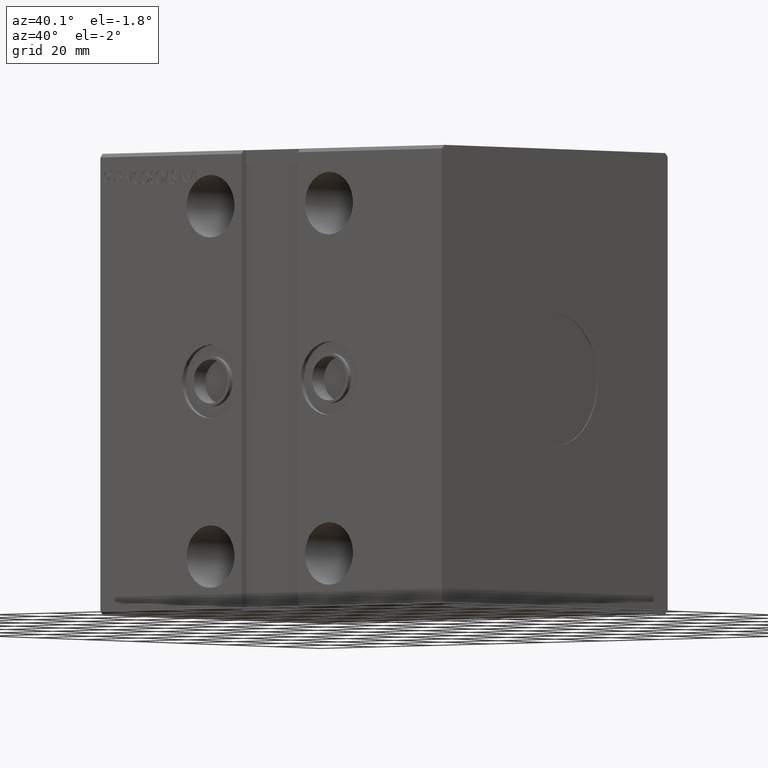
[diagram: clean part render]
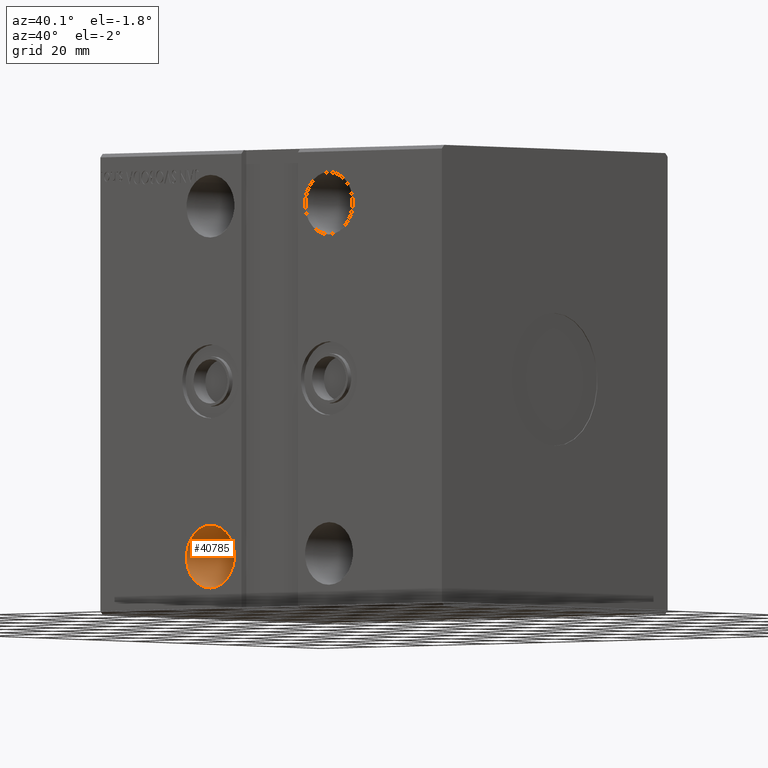
[diagram: same view with one face highlighted and labeled with its STEP entity id]
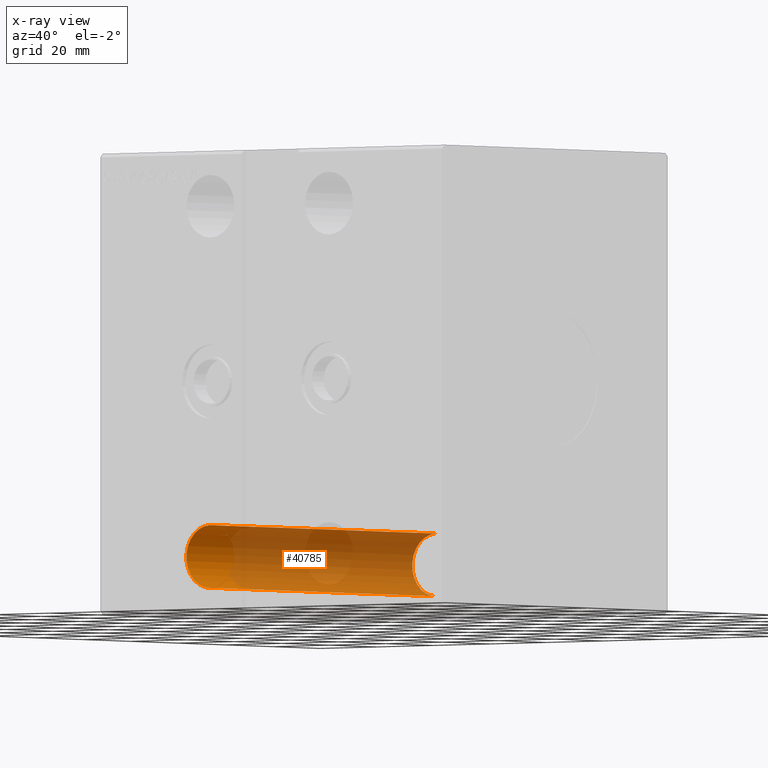
[diagram: x-ray of the same camera — body ghosted, the highlighted face saturated]
A machine part, auxiliary view. The second image highlights one B-rep face of the part: STEP entity #40785.
The next image is the same camera in x-ray: the body ghosted, the highlighted face saturated — about 81% of this face is hidden behind the body in this view.
In plain terms, the highlighted cylindrical surface (edge-blend (fillet) strip) has radius 8.5 mm, axis along (-0, -1, -0).
Its self-contained STEP definition (entity closure, byte-faithful):
#241 = CARTESIAN_POINT ( 'NONE',  ( 39.00000000000000000, 47.50000000000003553, -47.50000000000000711 ) ) ;
#782 = CIRCLE ( 'NONE', #14332, 8.500000000000007105 ) ;
#1797 = EDGE_CURVE ( 'NONE', #35742, #22499, #28149, .T. ) ;
#2920 = EDGE_CURVE ( 'NONE', #26020, #35742, #25171, .T. ) ;
#3180 = EDGE_CURVE ( 'NONE', #22499, #25205, #782, .T. ) ;
#3272 = CARTESIAN_POINT ( 'NONE',  ( 39.00000000000000000, 47.50000000000003553, -56.00000000000000711 ) ) ;
#3317 = DIRECTION ( 'NONE',  ( 0.000000000000000000, 0.000000000000000000, -1.000000000000000000 ) ) ;
#3562 = CARTESIAN_POINT ( 'NONE',  ( 39.00000000000000000, -47.50000000000000711, -39.00000000000000711 ) ) ;
#4055 = DIRECTION ( 'NONE',  ( 0.000000000000000000, 1.000000000000000000, 5.507058653894625853E-17 ) ) ;
#4156 = LINE ( 'NONE', #36040, #41369 ) ;
#4697 = CARTESIAN_POINT ( 'NONE',  ( 33.56410256410256920, 47.50000000000003553, -54.03460167618531074 ) ) ;
#4751 = EDGE_LOOP ( 'NONE', ( #24696, #19924, #33408, #14869, #9835, #25458, #8375, #31690 ) ) ;
#5081 = CIRCLE ( 'NONE', #34271, 8.500000000000003553 ) ;
#5390 = VERTEX_POINT ( 'NONE', #11814 ) ;
#7484 = VERTEX_POINT ( 'NONE', #13361 ) ;
#8247 = CARTESIAN_POINT ( 'NONE',  ( 39.00000000000000000, 47.50000000000003553, -47.50000000000000711 ) ) ;
#8339 = EDGE_CURVE ( 'NONE', #37366, #5390, #33176, .T. ) ;
#8375 = ORIENTED_EDGE ( 'NONE', *, *, #20192, .F. ) ;
#9835 = ORIENTED_EDGE ( 'NONE', *, *, #38186, .T. ) ;
#10900 = AXIS2_PLACEMENT_3D ( 'NONE', #241, #22561, #25742 ) ;
#11345 = AXIS2_PLACEMENT_3D ( 'NONE', #22254, #12476, #3317 ) ;
#11814 = CARTESIAN_POINT ( 'NONE',  ( 33.83333333333333570, 47.50000000000003553, -54.24948557710554553 ) ) ;
#12476 = DIRECTION ( 'NONE',  ( -0.000000000000000000, -1.000000000000000000, -5.507058653894625853E-17 ) ) ;
#13159 = DIRECTION ( 'NONE',  ( -1.000000000000000000, 1.711865943116876783E-12, -9.796085511398435237E-15 ) ) ;
#13361 = CARTESIAN_POINT ( 'NONE',  ( 33.56410256410256920, 47.30000000000013927, -54.03460167618531074 ) ) ;
#13524 = CIRCLE ( 'NONE', #24393, 8.500000000000000000 ) ;
#14332 = AXIS2_PLACEMENT_3D ( 'NONE', #17227, #40168, #17432 ) ;
#14869 = ORIENTED_EDGE ( 'NONE', *, *, #17612, .F. ) ;
#17043 = VECTOR ( 'NONE', #35351, 1000.000000000000000 ) ;
#17227 = CARTESIAN_POINT ( 'NONE',  ( 39.00000000000000000, -47.50000000000000711, -47.50000000000001421 ) ) ;
#17432 = DIRECTION ( 'NONE',  ( 0.000000000000000000, 0.000000000000000000, 1.000000000000000000 ) ) ;
#17612 = EDGE_CURVE ( 'NONE', #41816, #25205, #25495, .T. ) ;
#18907 = CARTESIAN_POINT ( 'NONE',  ( 39.00000000000000000, 47.50000000000003553, -56.00000000000000711 ) ) ;
#19480 = FACE_OUTER_BOUND ( 'NONE', #4751, .T. ) ;
#19924 = ORIENTED_EDGE ( 'NONE', *, *, #1797, .T. ) ;
#20192 = EDGE_CURVE ( 'NONE', #7484, #37366, #5081, .T. ) ;
#20209 = CARTESIAN_POINT ( 'NONE',  ( 33.83333333333333570, 47.50000000000003553, -54.24948557710554553 ) ) ;
#21905 = VECTOR ( 'NONE', #4055, 1000.000000000000000 ) ;
#22254 = CARTESIAN_POINT ( 'NONE',  ( 39.00000000000000000, 47.50000000000003553, -47.50000000000000711 ) ) ;
#22499 = VERTEX_POINT ( 'NONE', #3562 ) ;
#22561 = DIRECTION ( 'NONE',  ( -0.000000000000000000, 1.000000000000000000, 5.507058653894625853E-17 ) ) ;
#23504 = DIRECTION ( 'NONE',  ( -0.000000000000000000, -1.000000000000000000, -5.507058653894625853E-17 ) ) ;
#23565 = DIRECTION ( 'NONE',  ( -1.711874210006961910E-12, -1.000000000000000000, 8.106832115813578724E-16 ) ) ;
#23981 = CARTESIAN_POINT ( 'NONE',  ( 33.83333333333333570, 47.29999999999968452, -54.24948557710554553 ) ) ;
#24193 = DIRECTION ( 'NONE',  ( -0.000000000000000000, 1.000000000000000000, 5.507058653894625853E-17 ) ) ;
#24393 = AXIS2_PLACEMENT_3D ( 'NONE', #8247, #24193, #33970 ) ;
#24696 = ORIENTED_EDGE ( 'NONE', *, *, #2920, .T. ) ;
#25171 = CIRCLE ( 'NONE', #10900, 8.500000000000000000 ) ;
#25205 = VERTEX_POINT ( 'NONE', #26604 ) ;
#25458 = ORIENTED_EDGE ( 'NONE', *, *, #8339, .F. ) ;
#25495 = LINE ( 'NONE', #18907, #38995 ) ;
#25742 = DIRECTION ( 'NONE',  ( 0.000000000000000000, 0.000000000000000000, 1.000000000000000000 ) ) ;
#26020 = VERTEX_POINT ( 'NONE', #4697 ) ;
#26118 = DIRECTION ( 'NONE',  ( -0.000000000000000000, -1.000000000000000000, -5.507058653894625853E-17 ) ) ;
#26604 = CARTESIAN_POINT ( 'NONE',  ( 39.00000000000000000, -47.50000000000000711, -56.00000000000002132 ) ) ;
#28149 = LINE ( 'NONE', #34519, #17043 ) ;
#29379 = EDGE_CURVE ( 'NONE', #26020, #7484, #4156, .T. ) ;
#29947 = CARTESIAN_POINT ( 'NONE',  ( 39.00000000000000000, 47.29999999999083826, -47.50000000000000711 ) ) ;
#31690 = ORIENTED_EDGE ( 'NONE', *, *, #29379, .F. ) ;
#32245 = CYLINDRICAL_SURFACE ( 'NONE', #11345, 8.500000000000000000 ) ;
#33176 = LINE ( 'NONE', #20209, #21905 ) ;
#33408 = ORIENTED_EDGE ( 'NONE', *, *, #3180, .T. ) ;
#33970 = DIRECTION ( 'NONE',  ( 0.000000000000000000, 0.000000000000000000, 1.000000000000000000 ) ) ;
#34271 = AXIS2_PLACEMENT_3D ( 'NONE', #29947, #23565, #13159 ) ;
#34519 = CARTESIAN_POINT ( 'NONE',  ( 39.00000000000000000, 47.50000000000003553, -39.00000000000000711 ) ) ;
#35351 = DIRECTION ( 'NONE',  ( -0.000000000000000000, -1.000000000000000000, -5.507058653894625853E-17 ) ) ;
#35742 = VERTEX_POINT ( 'NONE', #41354 ) ;
#36040 = CARTESIAN_POINT ( 'NONE',  ( 33.56410256410256920, 47.50000000000003553, -54.03460167618531074 ) ) ;
#37366 = VERTEX_POINT ( 'NONE', #23981 ) ;
#38186 = EDGE_CURVE ( 'NONE', #41816, #5390, #13524, .T. ) ;
#38995 = VECTOR ( 'NONE', #26118, 1000.000000000000000 ) ;
#40168 = DIRECTION ( 'NONE',  ( 0.000000000000000000, -1.000000000000000000, -1.692413147294446216E-16 ) ) ;
#40785 = ADVANCED_FACE ( 'NONE', ( #19480 ), #32245, .F. ) ;
#41354 = CARTESIAN_POINT ( 'NONE',  ( 39.00000000000000000, 47.50000000000003553, -39.00000000000000711 ) ) ;
#41369 = VECTOR ( 'NONE', #23504, 1000.000000000000000 ) ;
#41816 = VERTEX_POINT ( 'NONE', #3272 ) ;